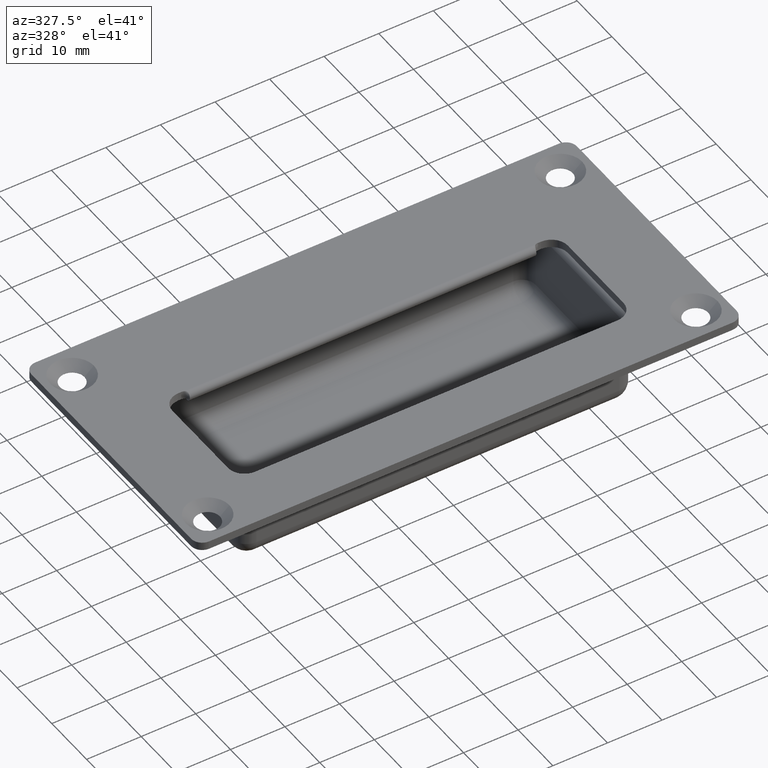
[diagram: clean part render]
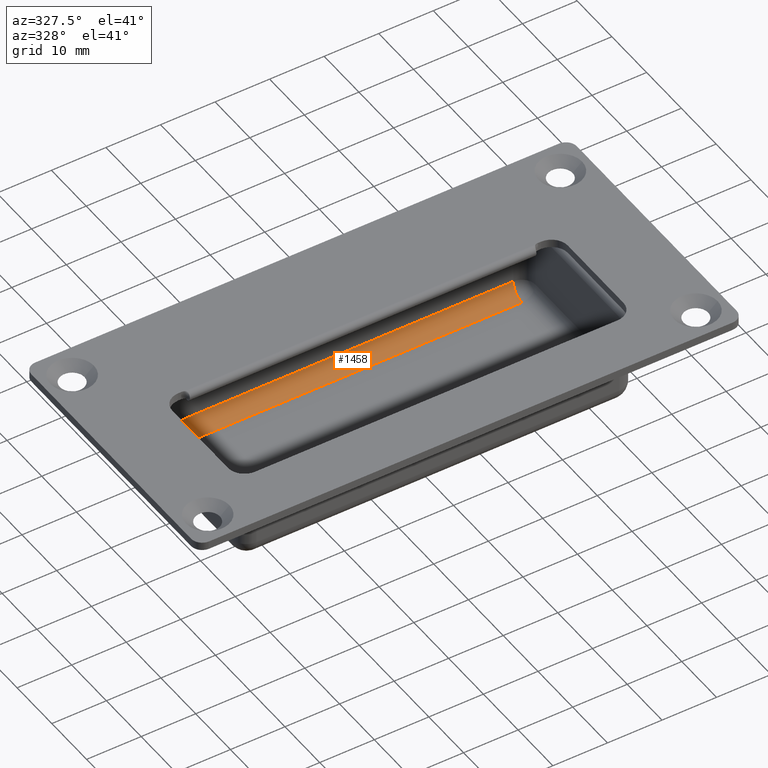
[diagram: same view with one face highlighted and labeled with its STEP entity id]
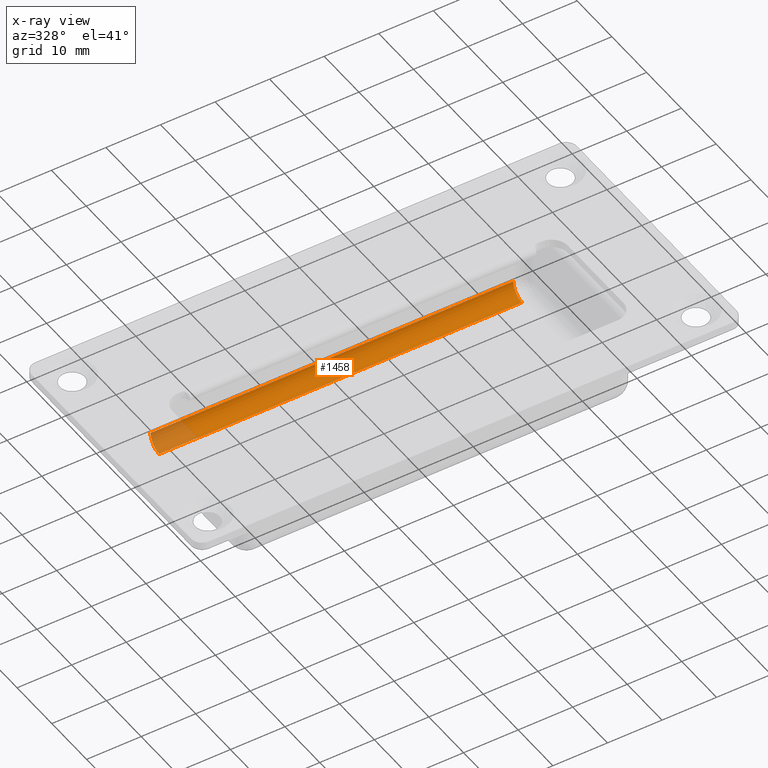
[diagram: x-ray of the same camera — body ghosted, the highlighted face saturated]
A machine part, auxiliary view. The second image highlights one B-rep face of the part: STEP entity #1458.
The next image is the same camera in x-ray: the body ghosted, the highlighted face saturated — about 10% of this face is hidden behind the body in this view.
In plain terms, the highlighted cylindrical surface (edge-blend (fillet) strip) has radius 2.5 mm, axis along (1, 0, 0).
Its self-contained STEP definition (entity closure, byte-faithful):
#72=CYLINDRICAL_SURFACE('',#1598,2.5);
#146=LINE('',#2611,#254);
#148=LINE('',#2620,#256);
#254=VECTOR('',#1914,66.5);
#256=VECTOR('',#1926,66.5);
#386=FACE_OUTER_BOUND('',#498,.T.);
#498=EDGE_LOOP('',(#1184,#1185,#1186,#1187));
#589=CIRCLE('',#1584,2.5);
#598=CIRCLE('',#1599,2.5);
#717=VERTEX_POINT('',#2587);
#718=VERTEX_POINT('',#2588);
#725=VERTEX_POINT('',#2610);
#727=VERTEX_POINT('',#2618);
#871=EDGE_CURVE('',#717,#718,#589,.T.);
#882=EDGE_CURVE('',#718,#725,#146,.T.);
#886=EDGE_CURVE('',#725,#727,#598,.T.);
#887=EDGE_CURVE('',#727,#717,#148,.T.);
#1184=ORIENTED_EDGE('',*,*,#886,.F.);
#1185=ORIENTED_EDGE('',*,*,#882,.F.);
#1186=ORIENTED_EDGE('',*,*,#871,.F.);
#1187=ORIENTED_EDGE('',*,*,#887,.F.);
#1458=ADVANCED_FACE('',(#386),#72,.F.);
#1584=AXIS2_PLACEMENT_3D('',#2589,#1888,#1889);
#1598=AXIS2_PLACEMENT_3D('',#2617,#1922,#1923);
#1599=AXIS2_PLACEMENT_3D('',#2619,#1924,#1925);
#1888=DIRECTION('center_axis',(-1.,0.,0.));
#1889=DIRECTION('ref_axis',(0.,1.,0.));
#1914=DIRECTION('',(-1.,0.,0.));
#1922=DIRECTION('center_axis',(1.,0.,0.));
#1923=DIRECTION('ref_axis',(0.,0.707106781186548,-0.707106781186547));
#1924=DIRECTION('center_axis',(1.,0.,0.));
#1925=DIRECTION('ref_axis',(0.,0.,-1.));
#1926=DIRECTION('',(1.,0.,0.));
#2587=CARTESIAN_POINT('',(33.25,15.,-12.5));
#2588=CARTESIAN_POINT('',(33.25,12.5,-15.));
#2589=CARTESIAN_POINT('Origin',(33.25,12.5,-12.5));
#2610=CARTESIAN_POINT('',(-33.25,12.5,-15.));
#2611=CARTESIAN_POINT('',(18.125,12.5,-15.));
#2617=CARTESIAN_POINT('Origin',(18.125,12.5,-12.5));
#2618=CARTESIAN_POINT('',(-33.25,15.,-12.5));
#2619=CARTESIAN_POINT('Origin',(-33.25,12.5,-12.5));
#2620=CARTESIAN_POINT('',(18.125,15.,-12.5));